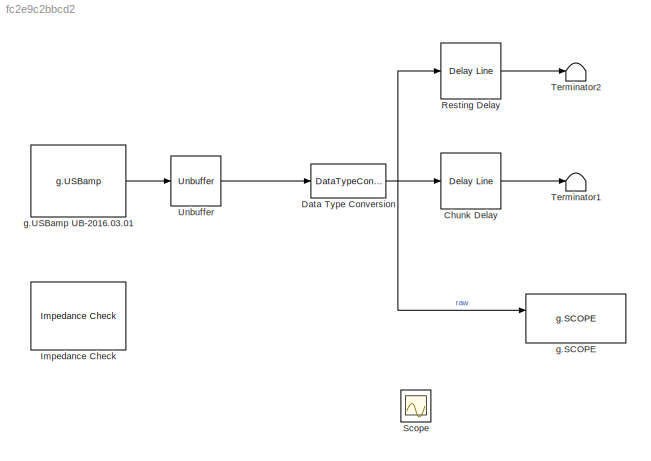
MODEL slx_fc2e9c2bbcd2
KIND model
CONFIG AbsTol = auto
CONFIG FixedStep = auto
CONFIG MaxStep = auto
CONFIG MinStep = auto
CONFIG RelTol = 1e-3
CONFIG SampleTimeConstraint = Unconstrained
CONFIG Solver = ode45
CONFIG SolverMode = Auto
CONFIG SolverName = ode45
CONFIG StartTime = 0.0
CONFIG StopTime = Inf
BLOCK [Reference] Chunk Delay  REF=dspbuff3/Delay Line
  Ports = [1, 1]
  SourceBlock = dspbuff3/Delay Line
  SourceType = Delay Line
  TreatMby1Signals = M channels (this choice will be removed - see release notes)
  UserDataPersistent = on
  directfeed = off
  enable_output = off
  hold_output = off
  ic = 0
  siz = 2048
BLOCK [DataTypeConversion] Data Type Conversion
  OutDataTypeStr = double
  RndMeth = Floor
  SaturateOnIntegerOverflow = off
BLOCK [Reference] Impedance Check  REF=Tools/Impedance Check
  Ports = []
  SourceBlock = Tools/Impedance Check
  SourceType = g.USBamp Impedance Check
BLOCK [Reference] Resting Delay  REF=dspbuff3/Delay Line
  Ports = [1, 1]
  SourceBlock = dspbuff3/Delay Line
  SourceType = Delay Line
  TreatMby1Signals = M channels (this choice will be removed - see release notes)
  UserDataPersistent = on
  directfeed = off
  enable_output = off
  hold_output = off
  ic = 0
  siz = 30720
BLOCK [Scope] Scope
  Floating = off
  NumInputPorts = 1
  Ports = [1]
BLOCK [Terminator] Terminator1
BLOCK [Terminator] Terminator2
BLOCK [Unbuffer] Unbuffer
  Ports = [1, 1]
  SampleBasedProcessing = Same as frame based
BLOCK [Reference] g.SCOPE  REF=gtecHighspeedLib/g.SCOPE
  Ports = [2]
  SourceBlock = gtecHighspeedLib/g.SCOPE
  SourceType = g.SCOPE
  UserDataPersistent = on
BLOCK [Reference] g.USBamp UB-2016.03.01  REF=gUSBamplib/g.USBamp
  Ports = [4, 1]
  SourceBlock = gUSBamplib/g.USBamp
  SourceType = g.USBamp
  cfg = currentCFG_USBamp_online_UB-2016.03.01.cfg
  snr = UB-2016.03.01
LINE Chunk Delay:1 -> Terminator1:1
NET Data Type Conversion:1 -> Chunk Delay:1, Resting Delay:1, g.SCOPE:1
LINE Resting Delay:1 -> Terminator2:1
LINE Unbuffer:1 -> Data Type Conversion:1
LINE g.USBamp UB-2016.03.01:1 -> Unbuffer:1
note: NET lines group one-source signal fan-out (src -> all destinations, sorted); 1:1 wires keep LINE
